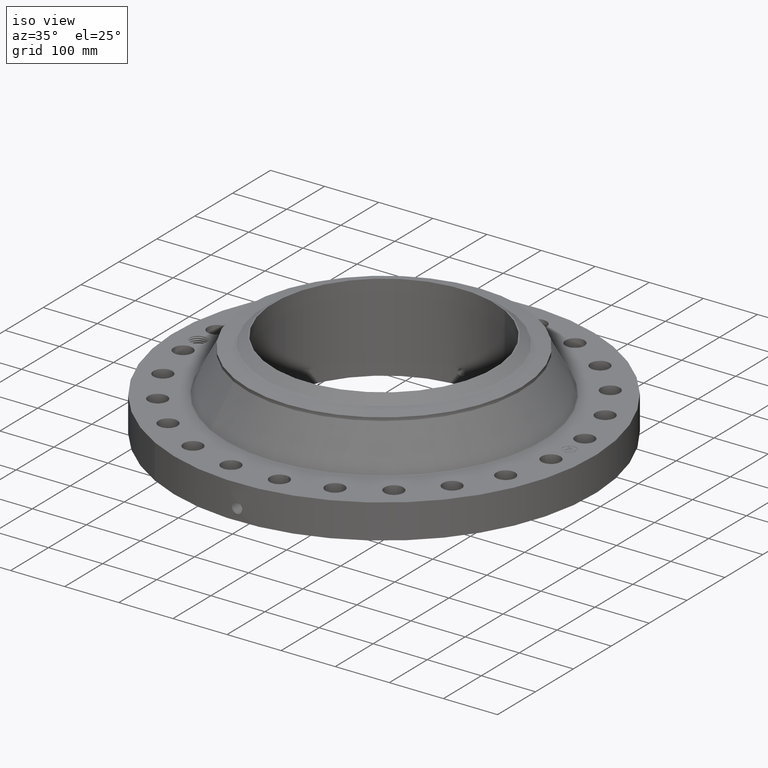
[diagram: clean part render]
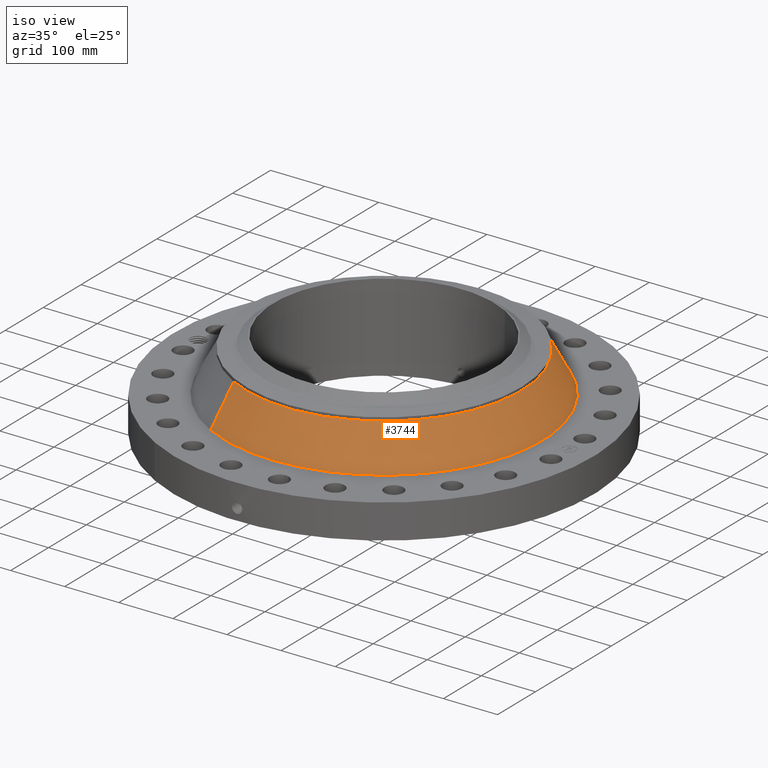
[diagram: same view with one face highlighted and labeled with its STEP entity id]
A machine part, iso view. The second image highlights one B-rep face of the part: STEP entity #3744.
In plain terms, the highlighted conical surface has half-angle 28.155 deg.
Its self-contained STEP definition (entity closure, byte-faithful):
#2937=AXIS2_PLACEMENT_3D('Circle Axis2P3D',#2935,#2936,$) ;
#3717=AXIS2_PLACEMENT_3D('Cone Axis2P3D',#3714,#3715,#3716) ;
#3728=AXIS2_PLACEMENT_3D('Circle Axis2P3D',#3726,#3727,$) ;
#2932=CARTESIAN_POINT('Vertex',(5.52589795933,10.115088366,2.62337762076)) ;
#2935=CARTESIAN_POINT('Axis2P3D Location',(0.,0.,2.62337762076)) ;
#2939=CARTESIAN_POINT('Vertex',(-5.52589795933,-10.115088366,2.62337762076)) ;
#3714=CARTESIAN_POINT('Axis2P3D Location',(0.,0.,5.47492453083)) ;
#3719=CARTESIAN_POINT('Line Origine',(5.1600766727,9.44545699247,4.04915107579)) ;
#3723=CARTESIAN_POINT('Vertex',(4.79425538606,8.77582561894,5.47492453083)) ;
#3726=CARTESIAN_POINT('Axis2P3D Location',(0.,0.,5.47492453083)) ;
#3730=CARTESIAN_POINT('Vertex',(-4.79425538606,-8.77582561894,5.47492453083)) ;
#3733=CARTESIAN_POINT('Line Origine',(-5.1600766727,-9.44545699247,4.04915107579)) ;
#2936=DIRECTION('Axis2P3D Direction',(0.,0.,-0.0393700787402)) ;
#3715=DIRECTION('Axis2P3D Direction',(0.,0.,-0.0393700787402)) ;
#3716=DIRECTION('Axis2P3D XDirection',(-0.0188750212049,-0.0345504945626,0.)) ;
#3720=DIRECTION('Vector Direction',(0.00890623840919,0.0163027600547,-0.0347116987773)) ;
#3727=DIRECTION('Axis2P3D Direction',(0.,0.,-0.0393700787402)) ;
#3734=DIRECTION('Vector Direction',(-0.00890623840919,-0.0163027600547,-0.0347116987773)) ;
#3721=VECTOR('Line Direction',#3720,0.0393700787402) ;
#3735=VECTOR('Line Direction',#3734,0.0393700787402) ;
#3739=ORIENTED_EDGE('',*,*,#2941,.F.) ;
#3740=ORIENTED_EDGE('',*,*,#3725,.T.) ;
#3741=ORIENTED_EDGE('',*,*,#3732,.T.) ;
#3742=ORIENTED_EDGE('',*,*,#3737,.F.) ;
#3744=ADVANCED_FACE('PartBody',(#3743),#3718,.T.) ;
#2938=CIRCLE('generated circle',#2937,11.5260817674) ;
#3729=CIRCLE('generated circle',#3728,10.) ;
#3718=CONICAL_SURFACE('Cone',#3717,10.,0.491391457057) ;
#2941=EDGE_CURVE('',#2933,#2940,#2938,.T.) ;
#3725=EDGE_CURVE('',#2933,#3724,#3722,.F.) ;
#3732=EDGE_CURVE('',#3724,#3731,#3729,.T.) ;
#3737=EDGE_CURVE('',#2940,#3731,#3736,.F.) ;
#3738=EDGE_LOOP('',(#3739,#3740,#3741,#3742)) ;
#3743=FACE_OUTER_BOUND('',#3738,.T.) ;
#3722=LINE('Line',#3719,#3721) ;
#3736=LINE('Line',#3733,#3735) ;
#2933=VERTEX_POINT('',#2932) ;
#2940=VERTEX_POINT('',#2939) ;
#3724=VERTEX_POINT('',#3723) ;
#3731=VERTEX_POINT('',#3730) ;